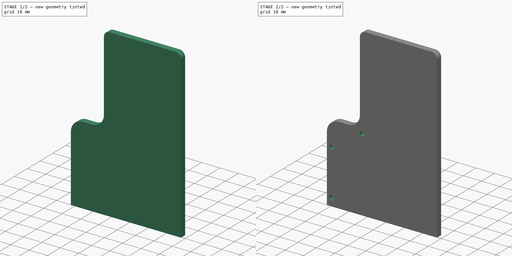
[diagram: build sequence overview — one tinted view per stage of 2, left to right]
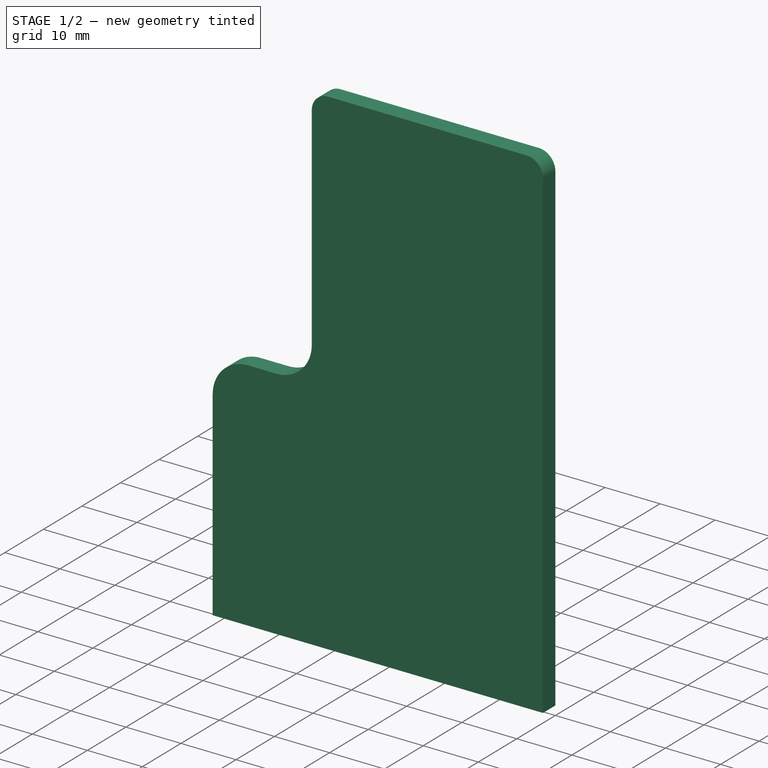
[diagram: stage 1 of 2 — iso view after this stage's code; geometry added in this stage tinted green]
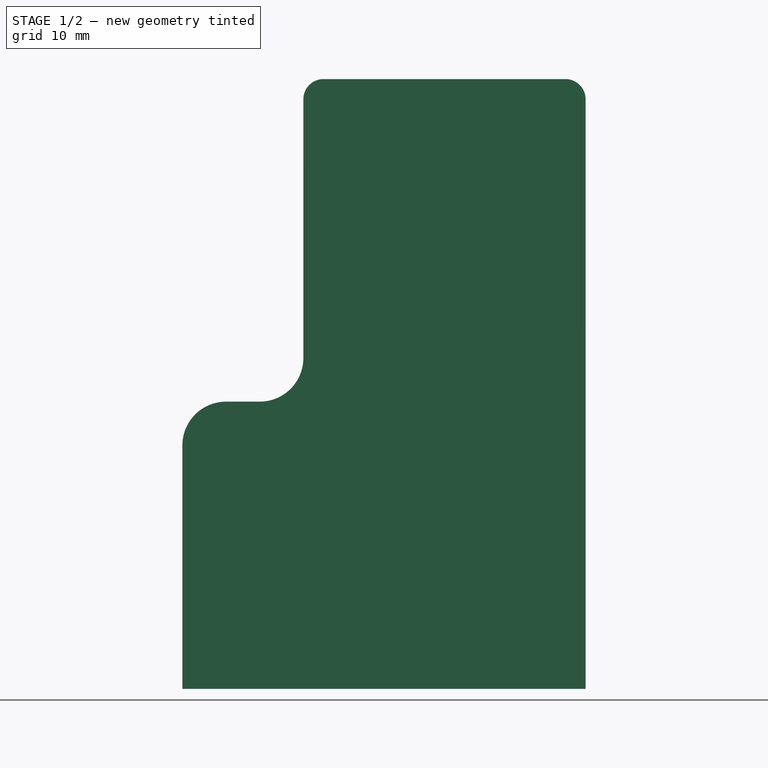
[diagram: stage 1 of 2 — front view after this stage's code; geometry added in this stage tinted green]
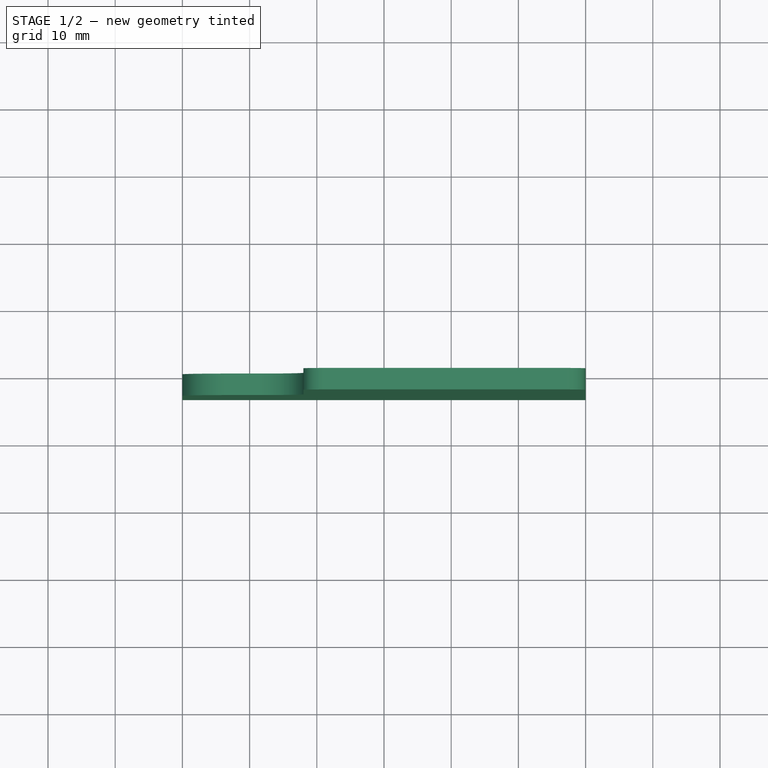
[diagram: stage 1 of 2 — top view after this stage's code; geometry added in this stage tinted green]
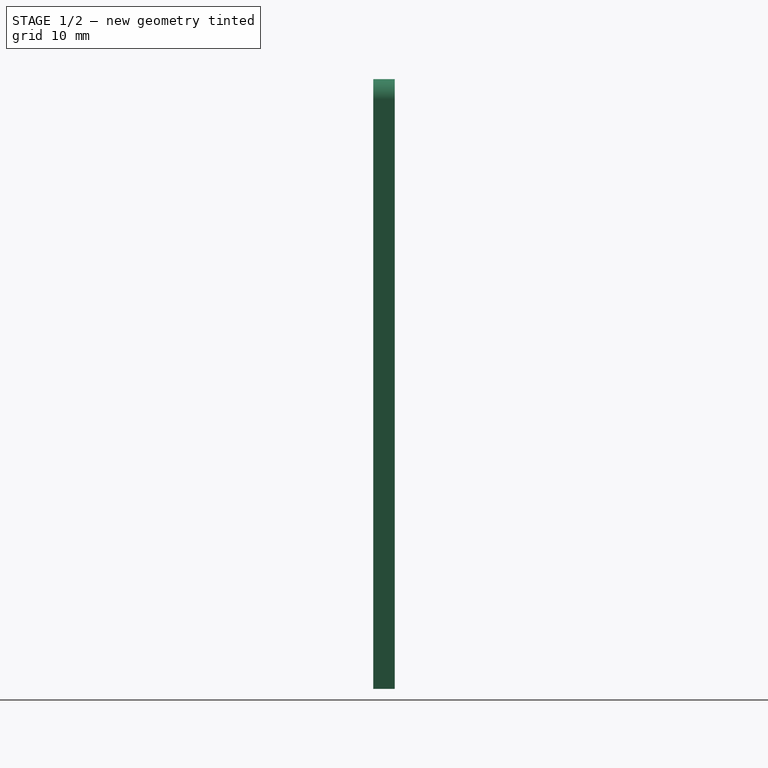
[diagram: stage 1 of 2 — right view after this stage's code; geometry added in this stage tinted green]
FCSTD DOCUMENT  (FreeCAD 0.19R22261 (Git))
Label: micro-swiss_direct_drive_backplate
License: All rights reserved
LicenseURL: http://en.wikipedia.org/wiki/All_rights_reserved
objects: PartDesign::CoordinateSystem×3, App::DocumentObjectGroup×2, Sketcher::SketchObject×2, App::FeaturePython×1, PartDesign::Pad×1, PartDesign::Pocket×1, PartDesign::Body×1, App::Part×1
note: 10 computed .brp shape members not serialized (recipe doc carries the construction recipe); baked Part::Feature solids carry a one-line shape summary decoded from their .brp

FEATURE [App::DocumentObjectGroup] Parts
FEATURE [PartDesign::CoordinateSystem] LCS_Origin
  AttacherType = Attacher::AttachEngine3D
  MapMode = 2
  Support = -> [X_Axis]
FEATURE [App::DocumentObjectGroup] Constraints
FEATURE [App::FeaturePython] Variables  # WARN: FeaturePython — macro-defined, semantics opaque (R4)
FEATURE [PartDesign::CoordinateSystem] LCS_0
  AttacherType = Attacher::AttachEngine3D
  MapMode = 2
  Support = -> [X_Axis001]
FEATURE [Sketcher::SketchObject] Sketch
  MapMode = 5
  Placement = pos=(0,0,0) rot=(1,0,0;1.5708rad)
  Support = -> [XZ_Plane001]
  sketch-geometry (10):
    g0: LineSegment StartX=60 StartY=0 StartZ=0 EndX=0 EndY=0 EndZ=0
    g1: LineSegment StartX=0 StartY=0 StartZ=0 EndX=0 EndY=36.25 EndZ=0
    g2: LineSegment StartX=6.5 StartY=42.75 StartZ=0 EndX=11.5 EndY=42.75 EndZ=0
    g3: LineSegment StartX=18 StartY=49.25 StartZ=0 EndX=18 EndY=87.75 EndZ=0
    g4: LineSegment StartX=21 StartY=90.75 StartZ=0 EndX=57 EndY=90.75 EndZ=0
    g5: LineSegment StartX=60 StartY=87.75 StartZ=0 EndX=60 EndY=0 EndZ=0
    g6: ArcOfCircle CenterX=6.5 CenterY=36.25 CenterZ=0 NormalX=0 NormalY=0 NormalZ=1 AngleXU=0 Radius=6.5 StartAngle=1.5708 EndAngle=3.14159
    g7: ArcOfCircle CenterX=11.5 CenterY=49.25 CenterZ=0 NormalX=0 NormalY=0 NormalZ=1 AngleXU=0 Radius=6.5 StartAngle=4.71239 EndAngle=6.28319
    g8: ArcOfCircle CenterX=21 CenterY=87.75 CenterZ=0 NormalX=0 NormalY=0 NormalZ=1 AngleXU=0 Radius=3 StartAngle=1.5708 EndAngle=3.14159
    g9: ArcOfCircle CenterX=57 CenterY=87.75 CenterZ=0 NormalX=0 NormalY=0 NormalZ=1 AngleXU=0 Radius=3 StartAngle=1.2e-15 EndAngle=1.5708
  constraints (25):
    c: Horizontal(g0)
    c: Coincident(g0,g1)
    c: Vertical(g1)
    c: Horizontal(g2)
    c: Vertical(g3)
    c: Horizontal(g4)
    c: Coincident(g5,g0)
    c: Vertical(g5)
    c: Tangent(g2,g6) = 1.5708
    c: Tangent(g1,g6) = 1.5708
    c: Tangent(g2,g7) = -1.5708
    c: Tangent(g3,g7) = -1.5708
    c: DistanceY(g0,g2) = 42.75
    c: DistanceX(g1,g3) = 18
    c: DistanceX(g2,g2) = 5
    c: Equal(g6,g7)
    c: Coincident(g0,g-1)
    c: Tangent(g4,g8) = 1.5708
    c: Tangent(g3,g8) = 1.5708
    c: DistanceY(g2,g4) = 48
    c: Radius(g8) = 3
    c: Tangent(g4,g9) = 1.5708
    c: Tangent(g5,g9) = 1.5708
    c: Equal(g8,g9)
    c: DistanceX(g3,g5) = 42
FEATURE [PartDesign::Pad] Pad
  Length = 3.2
  Length2 = 100
  Placement = pos=(0,0,0) rot=(1,0,0;1.5708rad)
  Profile = -> Sketch
  Type = 0
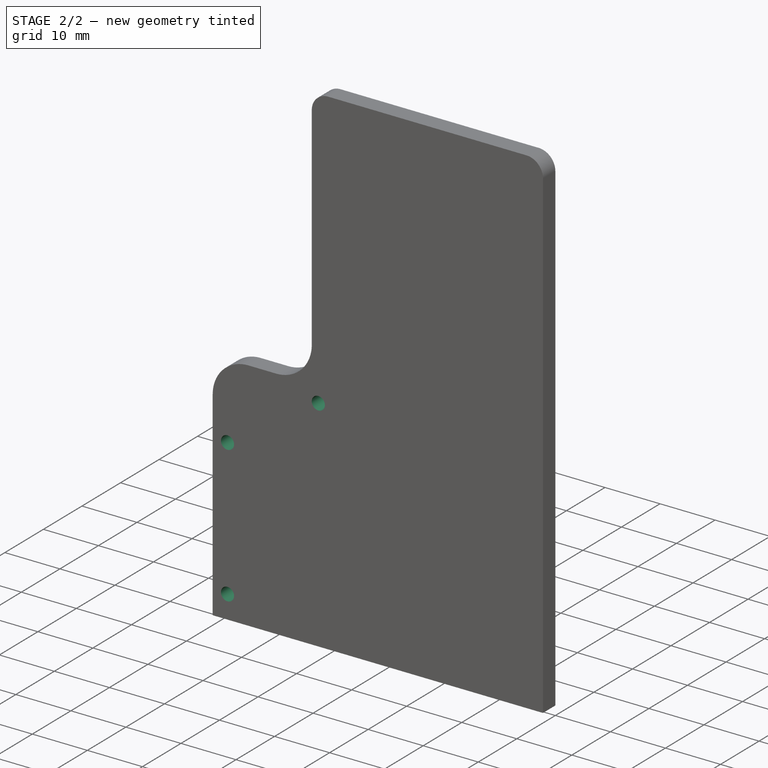
[diagram: stage 2 of 2 — iso view after this stage's code; geometry added in this stage tinted green]
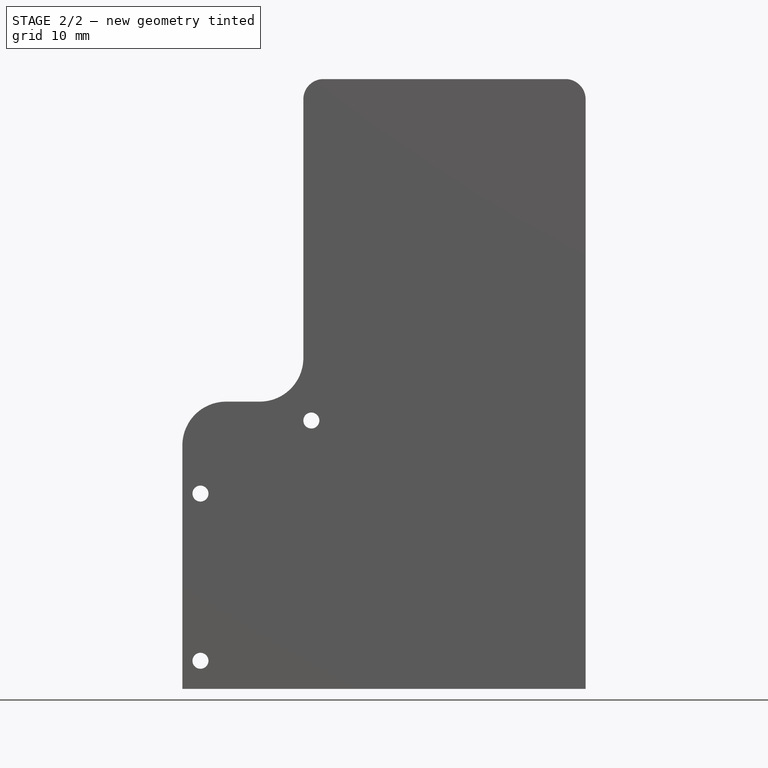
[diagram: stage 2 of 2 — front view after this stage's code; geometry added in this stage tinted green]
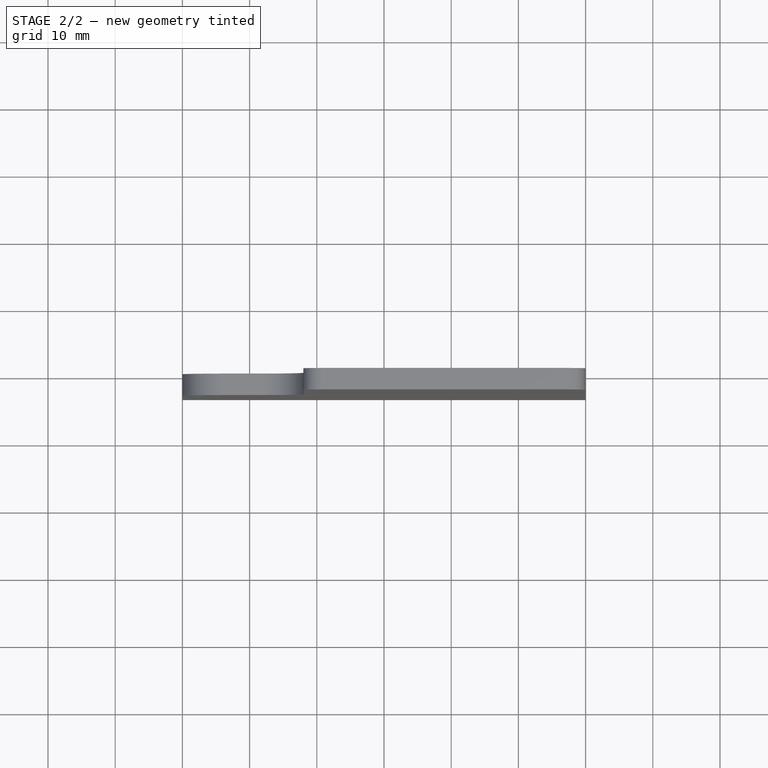
[diagram: stage 2 of 2 — top view after this stage's code; geometry added in this stage tinted green]
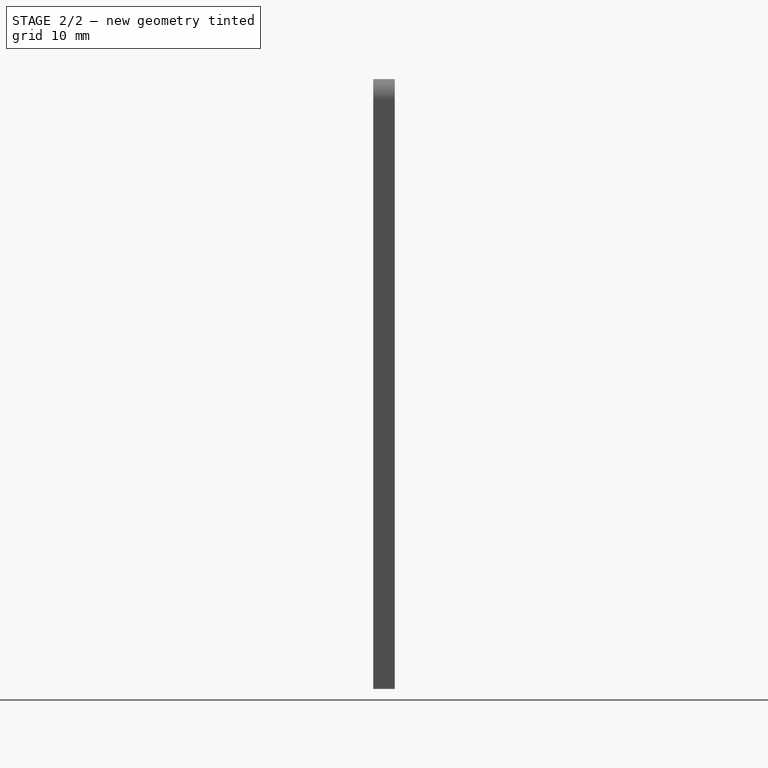
[diagram: stage 2 of 2 — right view after this stage's code; geometry added in this stage tinted green]
FEATURE [Sketcher::SketchObject] Sketch001
  ExternalGeometry = -> [Pad]
  MapMode = 5
  Placement = pos=(0,-3.2,1.4e-15) rot=(1,0,0;1.5708rad)
  Support = -> [Pad]
  sketch-geometry (8):
    g0: Circle CenterX=19.19 CenterY=39.94 CenterZ=0 NormalX=0 NormalY=0 NormalZ=1 AngleXU=0 Radius=1.19
    g1: Circle CenterX=2.69 CenterY=29.07 CenterZ=0 NormalX=0 NormalY=0 NormalZ=1 AngleXU=0 Radius=1.19
    g2: Circle CenterX=2.69 CenterY=4.19 CenterZ=0 NormalX=0 NormalY=0 NormalZ=1 AngleXU=0 Radius=1.19
    g3: LineSegment [constr] StartX=2.69 StartY=3 StartZ=0 EndX=2.69 EndY=0 EndZ=0
    g4: LineSegment [constr] StartX=2.69 StartY=27.88 StartZ=0 EndX=2.69 EndY=5.38 EndZ=0
    g5: LineSegment [constr] StartX=1.5 StartY=29.07 StartZ=0 EndX=0 EndY=29.07 EndZ=0
    g6: LineSegment [constr] StartX=18 StartY=39.94 StartZ=0 EndX=0 EndY=39.94 EndZ=0
    g7: LineSegment [constr] StartX=19.19 StartY=90.75 StartZ=0 EndX=19.19 EndY=38.75 EndZ=0
  constraints (29):
    c: Diameter(g0) = 2.38
    c: Equal(g0,g1)
    c: Equal(g1,g2)
    c: Vertical(g2,g1)
    c: Vertical(g3)
    c: Horizontal(g3,g-1)
    c: Vertical(g3,g2)
    c: PointOnObject(g3,g2)
    c: Distance(g3) = 3
    c: Vertical(g4)
    c: Distance(g4) = 22.5
    c: PointOnObject(g4,g2)
    c: Vertical(g4,g2)
    c: PointOnObject(g4,g1)
    c: Horizontal(g5)
    c: Horizontal(g5,g1)
    c: PointOnObject(g5,g1)
    c: Distance(g5) = 1.5
    c: PointOnObject(g5,g-3)
    c: Horizontal(g6)
    c: PointOnObject(g6,g0)
    c: Horizontal(g6,g0)
    c: Distance(g6) = 18
    c: Vertical(g6,g-3)
    c: Vertical(g7)
    c: Horizontal(g7,g-5)
    c: Distance(g7) = 52
    c: PointOnObject(g7,g0)
    c: Vertical(g0,g7)
FEATURE [PartDesign::Pocket] Pocket
  BaseFeature = -> Pad
  Length = 5
  Length2 = 100
  Placement = pos=(0,0,0) rot=(1,0,0;1.5708rad)
  Profile = -> Sketch001
  Type = 1
FEATURE [PartDesign::Body] Body
  Group = -> [LCS_0,Sketch,Pad,Sketch001,Pocket]
  Origin = -> Origin001
  Tip = -> Pocket
FEATURE [PartDesign::CoordinateSystem] LCS_1
  AttacherType = Attacher::AttachEngine3D
  MapMode = 11
  Placement = pos=(2.69,-3.2,29.07) rot=(0.57735,-0.57735,0.57735;2.0944rad)
  Support = -> [Pocket]
FEATURE [App::Part] Model  label="micro-swiss_direct_drive_backplate"
  Configuration = 0
  Group = -> [LCS_Origin,Constraints,Variables,Body,LCS_1]
  Origin = -> Origin
  Type = Assembly4 Model
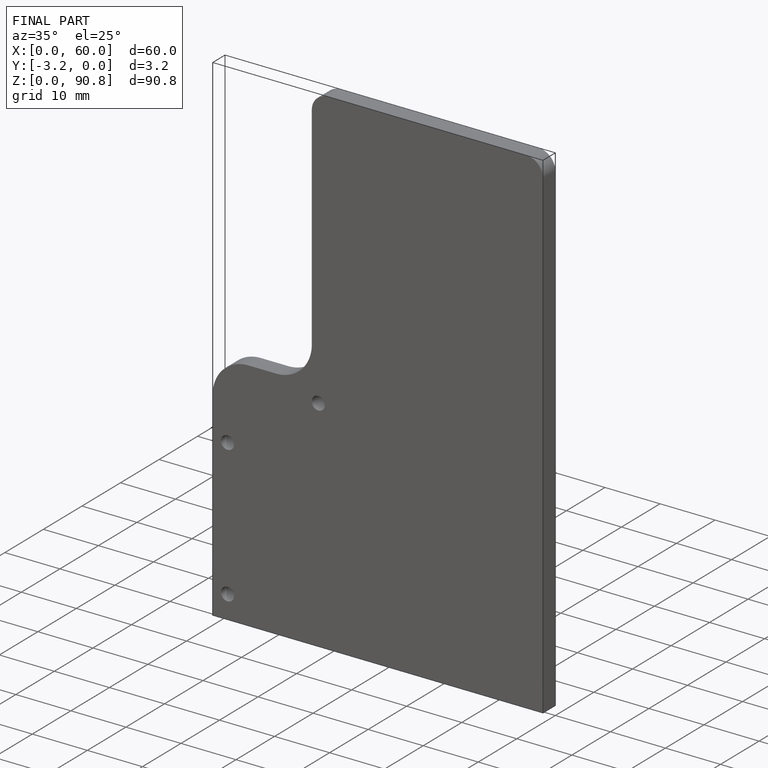
[diagram: finished part — iso view with bounding-box wireframe]
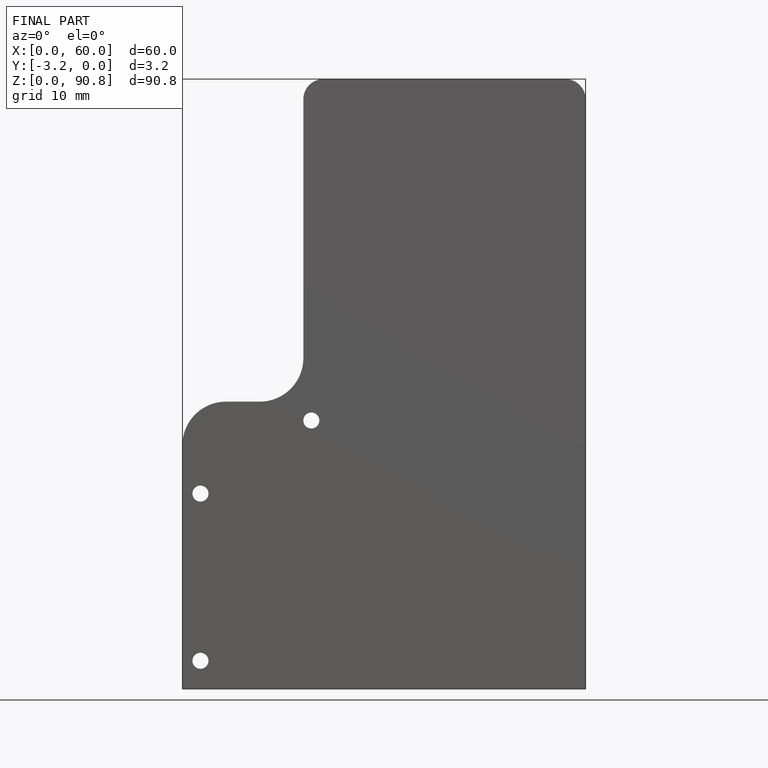
[diagram: finished part — front view with bounding-box wireframe]
